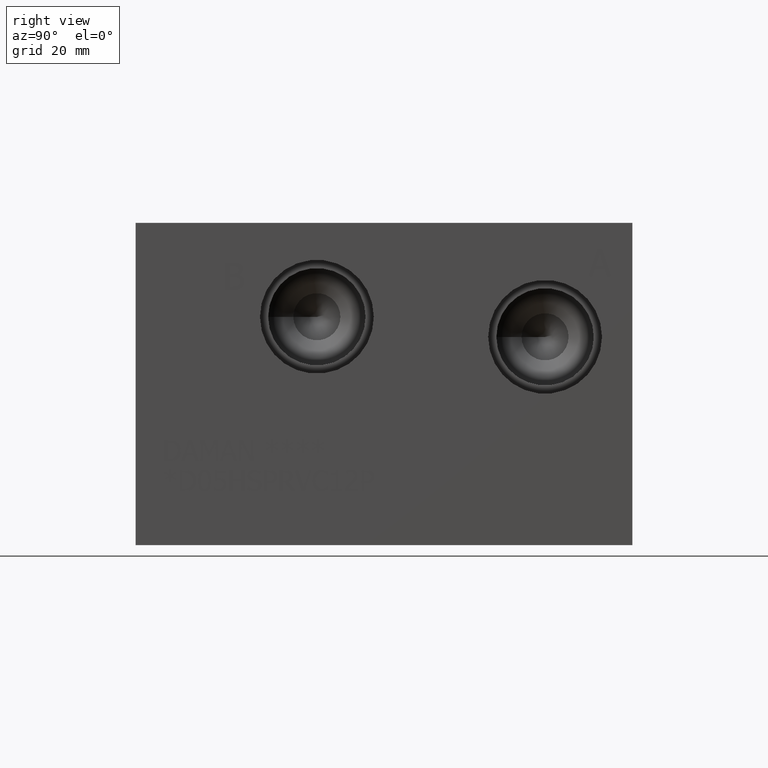
[diagram: clean part render]
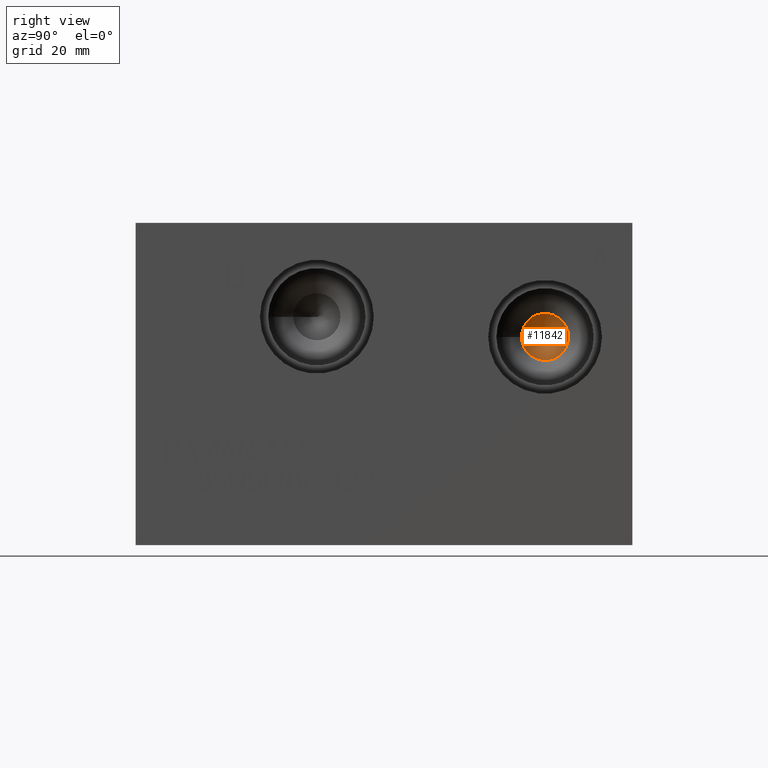
[diagram: same view with one face highlighted and labeled with its STEP entity id]
A machine part, right view. The second image highlights one B-rep face of the part: STEP entity #11842.
In plain terms, the highlighted conical surface has half-angle 60 deg.
Its self-contained STEP definition (entity closure, byte-faithful):
#64=CONICAL_SURFACE('',#12349,2.7813,1.0471975511966);
#119=CIRCLE('',#12350,5.5626);
#120=CIRCLE('',#12351,5.5626);
#1253=FACE_OUTER_BOUND('',#1911,.T.);
#1911=EDGE_LOOP('',(#10206,#10207,#10208,#10209));
#3149=LINE('',#19727,#4333);
#4333=VECTOR('',#14504,2.7813);
#5634=VERTEX_POINT('',#19723);
#5635=VERTEX_POINT('',#19724);
#5636=VERTEX_POINT('',#19726);
#7216=EDGE_CURVE('',#5634,#5635,#119,.T.);
#7217=EDGE_CURVE('',#5635,#5636,#3149,.T.);
#7218=EDGE_CURVE('',#5635,#5634,#120,.T.);
#10206=ORIENTED_EDGE('',*,*,#7216,.T.);
#10207=ORIENTED_EDGE('',*,*,#7217,.T.);
#10208=ORIENTED_EDGE('',*,*,#7217,.F.);
#10209=ORIENTED_EDGE('',*,*,#7218,.T.);
#11842=ADVANCED_FACE('',(#1253),#64,.F.);
#12349=AXIS2_PLACEMENT_3D('',#19722,#14500,#14501);
#12350=AXIS2_PLACEMENT_3D('',#19725,#14502,#14503);
#12351=AXIS2_PLACEMENT_3D('',#19728,#14505,#14506);
#14500=DIRECTION('center_axis',(1.,0.,0.));
#14501=DIRECTION('ref_axis',(0.,1.,0.));
#14502=DIRECTION('center_axis',(1.,0.,0.));
#14503=DIRECTION('ref_axis',(0.,1.,0.));
#14504=DIRECTION('',(-0.5,0.866025403784439,1.06057523872491E-16));
#14505=DIRECTION('center_axis',(1.,0.,0.));
#14506=DIRECTION('ref_axis',(0.,1.,0.));
#19722=CARTESIAN_POINT('Origin',(68.2051056963029,96.8248,49.2252));
#19723=CARTESIAN_POINT('',(69.81089,102.3874,49.2252));
#19724=CARTESIAN_POINT('',(69.81089,91.2622,49.2252));
#19725=CARTESIAN_POINT('Origin',(69.81089,96.8248,49.2252));
#19726=CARTESIAN_POINT('',(66.5993213926058,96.8248,49.2252));
#19727=CARTESIAN_POINT('',(68.2051056963029,94.0435,49.2252));
#19728=CARTESIAN_POINT('Origin',(69.81089,96.8248,49.2252));